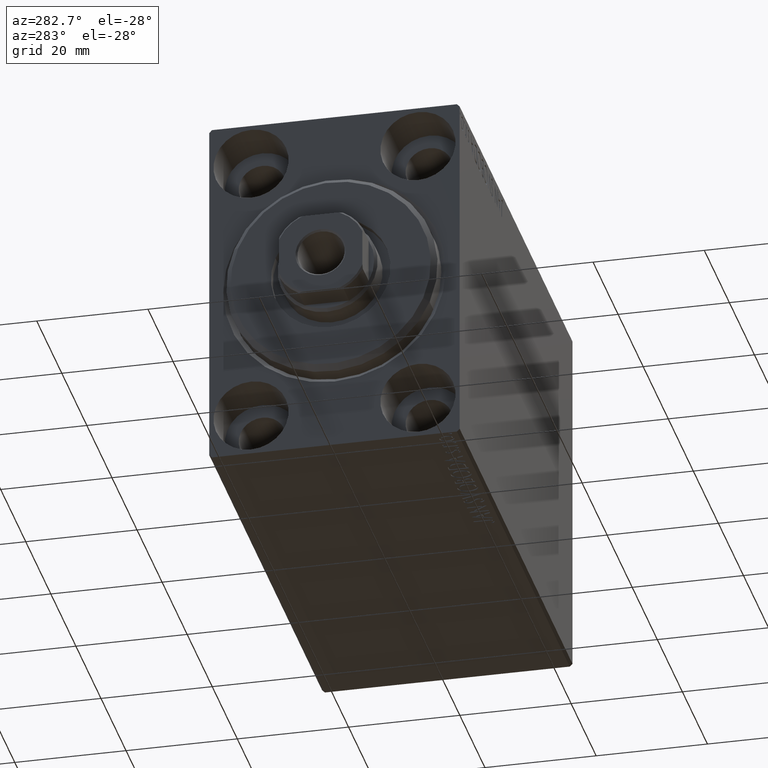
[diagram: clean part render]
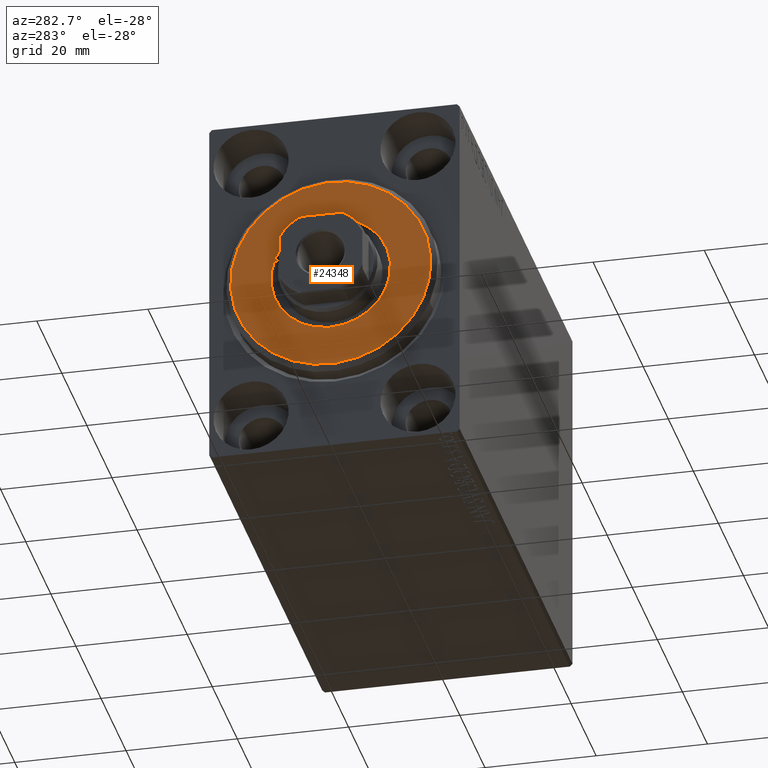
[diagram: same view with one face highlighted and labeled with its STEP entity id]
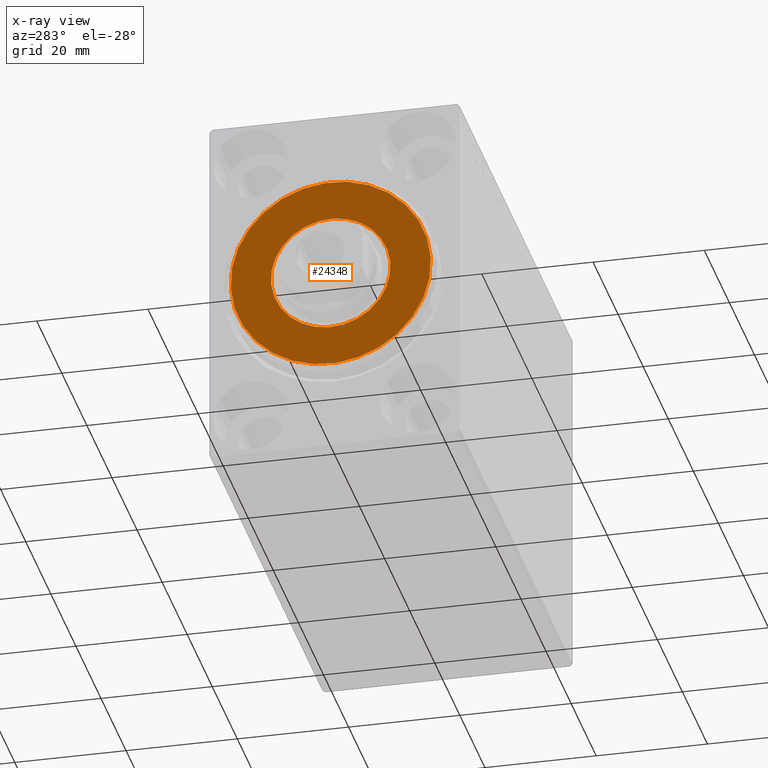
[diagram: x-ray of the same camera — body ghosted, the highlighted face saturated]
A machine part, auxiliary view. The second image highlights one B-rep face of the part: STEP entity #24348.
The next image is the same camera in x-ray: the body ghosted, the highlighted face saturated — about 0% of this face is hidden behind the body in this view.
In plain terms, the highlighted planar face has unit normal (-1, 0, 0).
Its self-contained STEP definition (entity closure, byte-faithful):
#262 = VERTEX_POINT ( 'NONE', #8594 ) ;
#1528 = CARTESIAN_POINT ( 'NONE',  ( 3.000000000000000000, 1.316495309083404223E-15, -10.75000000000000000 ) ) ;
#2701 = CARTESIAN_POINT ( 'NONE',  ( 3.000000000000000000, 0.000000000000000000, 0.000000000000000000 ) ) ;
#3470 = EDGE_CURVE ( 'NONE', #4568, #7238, #34160, .T. ) ;
#3650 = CARTESIAN_POINT ( 'NONE',  ( 3.000000000000000000, 0.000000000000000000, 10.75000000000000000 ) ) ;
#4568 = VERTEX_POINT ( 'NONE', #1528 ) ;
#4607 = DIRECTION ( 'NONE',  ( 1.000000000000000000, -0.000000000000000000, 0.000000000000000000 ) ) ;
#7238 = VERTEX_POINT ( 'NONE', #3650 ) ;
#7582 = CARTESIAN_POINT ( 'NONE',  ( 3.000000000000000000, 0.000000000000000000, 17.99999999999999645 ) ) ;
#8594 = CARTESIAN_POINT ( 'NONE',  ( 3.000000000000000000, 2.265596578422603002E-15, -17.99999999999999645 ) ) ;
#12573 = CARTESIAN_POINT ( 'NONE',  ( 3.000000000000000000, 0.000000000000000000, 0.000000000000000000 ) ) ;
#13155 = ORIENTED_EDGE ( 'NONE', *, *, #3470, .T. ) ;
#13233 = EDGE_CURVE ( 'NONE', #7238, #4568, #16056, .T. ) ;
#13842 = EDGE_LOOP ( 'NONE', ( #33313, #18835 ) ) ;
#14049 = ORIENTED_EDGE ( 'NONE', *, *, #13233, .T. ) ;
#14406 = CIRCLE ( 'NONE', #25030, 17.99999999999999645 ) ;
#14558 = PLANE ( 'NONE',  #42416 ) ;
#15433 = DIRECTION ( 'NONE',  ( 0.000000000000000000, 0.000000000000000000, -1.000000000000000000 ) ) ;
#16056 = CIRCLE ( 'NONE', #40815, 10.75000000000000000 ) ;
#16210 = DIRECTION ( 'NONE',  ( -1.000000000000000000, 0.000000000000000000, -0.000000000000000000 ) ) ;
#17693 = DIRECTION ( 'NONE',  ( 0.000000000000000000, 0.000000000000000000, -1.000000000000000000 ) ) ;
#18835 = ORIENTED_EDGE ( 'NONE', *, *, #37151, .T. ) ;
#19301 = AXIS2_PLACEMENT_3D ( 'NONE', #40308, #27459, #23707 ) ;
#23623 = CIRCLE ( 'NONE', #41279, 17.99999999999999645 ) ;
#23707 = DIRECTION ( 'NONE',  ( 0.000000000000000000, 0.000000000000000000, -1.000000000000000000 ) ) ;
#24118 = DIRECTION ( 'NONE',  ( 1.000000000000000000, -0.000000000000000000, 0.000000000000000000 ) ) ;
#24348 = ADVANCED_FACE ( 'NONE', ( #27865, #34717 ), #14558, .T. ) ;
#25030 = AXIS2_PLACEMENT_3D ( 'NONE', #30791, #4607, #17693 ) ;
#27459 = DIRECTION ( 'NONE',  ( -1.000000000000000000, 0.000000000000000000, -0.000000000000000000 ) ) ;
#27865 = FACE_OUTER_BOUND ( 'NONE', #13842, .T. ) ;
#29621 = DIRECTION ( 'NONE',  ( 1.000000000000000000, -0.000000000000000000, 0.000000000000000000 ) ) ;
#29731 = DIRECTION ( 'NONE',  ( 0.000000000000000000, 0.000000000000000000, -1.000000000000000000 ) ) ;
#29814 = EDGE_LOOP ( 'NONE', ( #14049, #13155 ) ) ;
#30791 = CARTESIAN_POINT ( 'NONE',  ( 3.000000000000000000, 0.000000000000000000, 0.000000000000000000 ) ) ;
#30971 = DIRECTION ( 'NONE',  ( 0.000000000000000000, 0.000000000000000000, -1.000000000000000000 ) ) ;
#33313 = ORIENTED_EDGE ( 'NONE', *, *, #40420, .T. ) ;
#34075 = CARTESIAN_POINT ( 'NONE',  ( 3.000000000000000000, 0.000000000000000000, 0.000000000000000000 ) ) ;
#34160 = CIRCLE ( 'NONE', #19301, 10.75000000000000000 ) ;
#34717 = FACE_BOUND ( 'NONE', #29814, .T. ) ;
#37151 = EDGE_CURVE ( 'NONE', #262, #41504, #14406, .T. ) ;
#40308 = CARTESIAN_POINT ( 'NONE',  ( 3.000000000000000000, 0.000000000000000000, 0.000000000000000000 ) ) ;
#40420 = EDGE_CURVE ( 'NONE', #41504, #262, #23623, .T. ) ;
#40815 = AXIS2_PLACEMENT_3D ( 'NONE', #2701, #16210, #29731 ) ;
#41279 = AXIS2_PLACEMENT_3D ( 'NONE', #12573, #29621, #15433 ) ;
#41504 = VERTEX_POINT ( 'NONE', #7582 ) ;
#42416 = AXIS2_PLACEMENT_3D ( 'NONE', #34075, #24118, #30971 ) ;